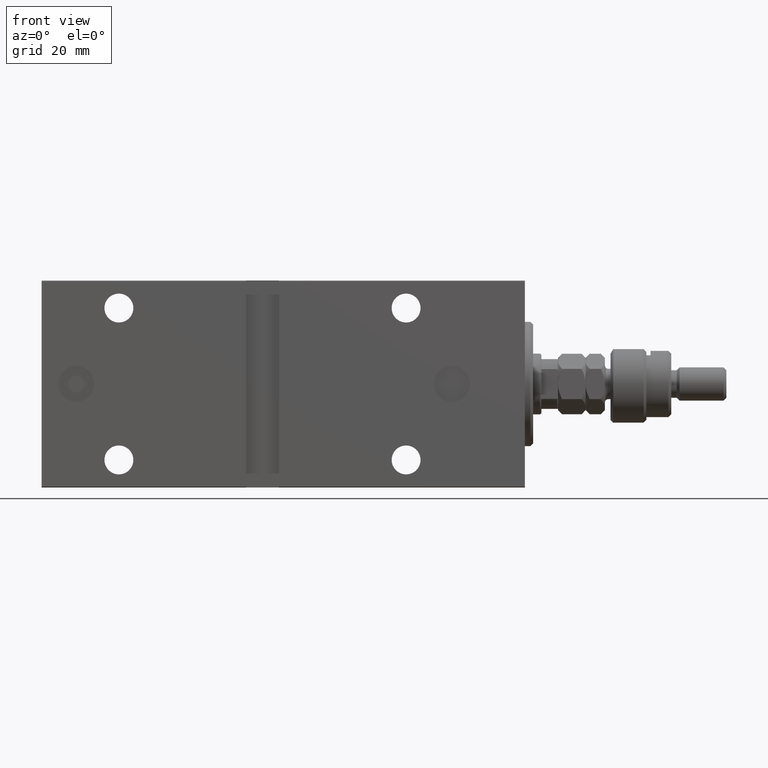
[diagram: clean part render]
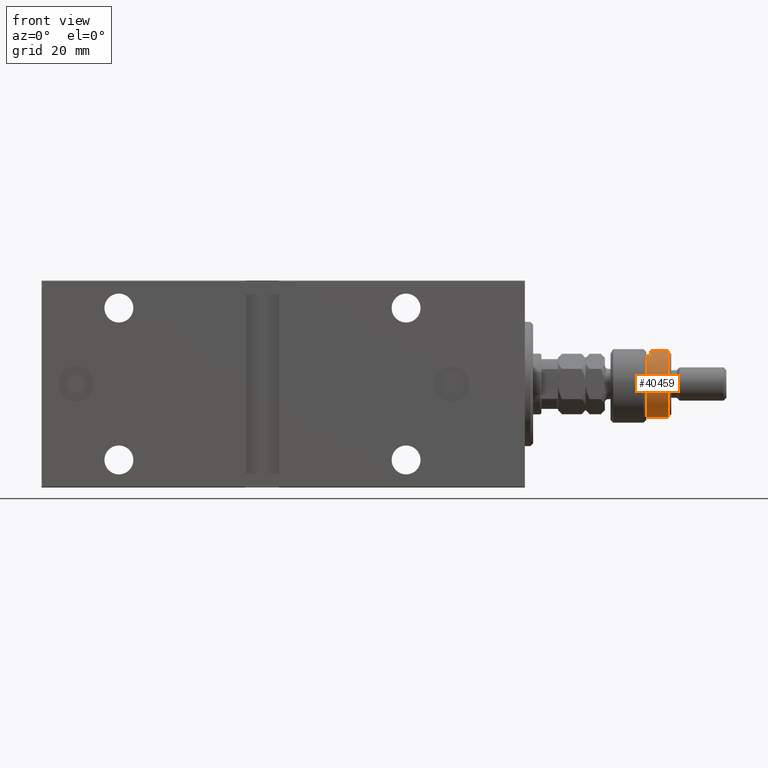
[diagram: same view with one face highlighted and labeled with its STEP entity id]
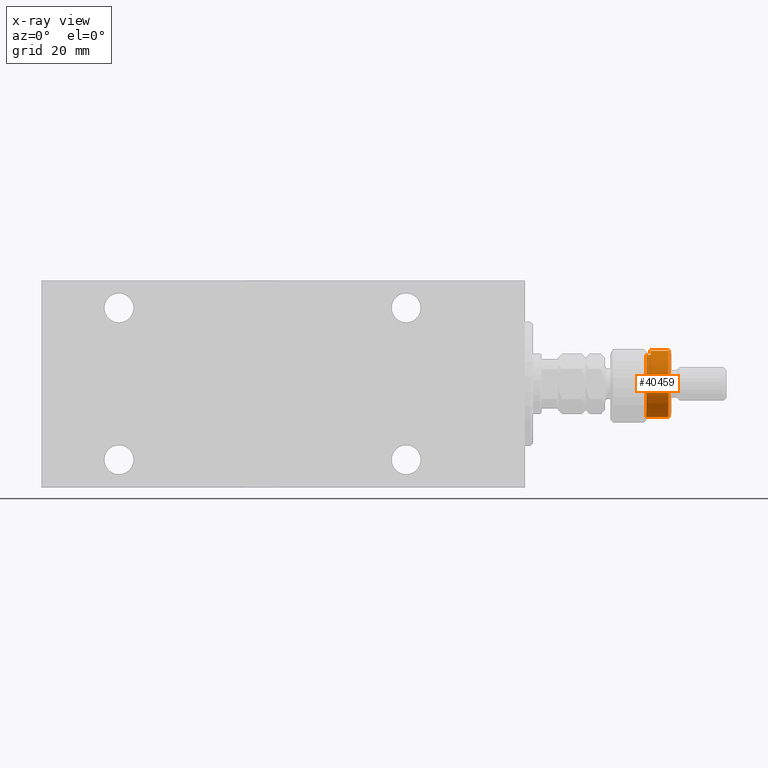
[diagram: x-ray of the same camera — body ghosted, the highlighted face saturated]
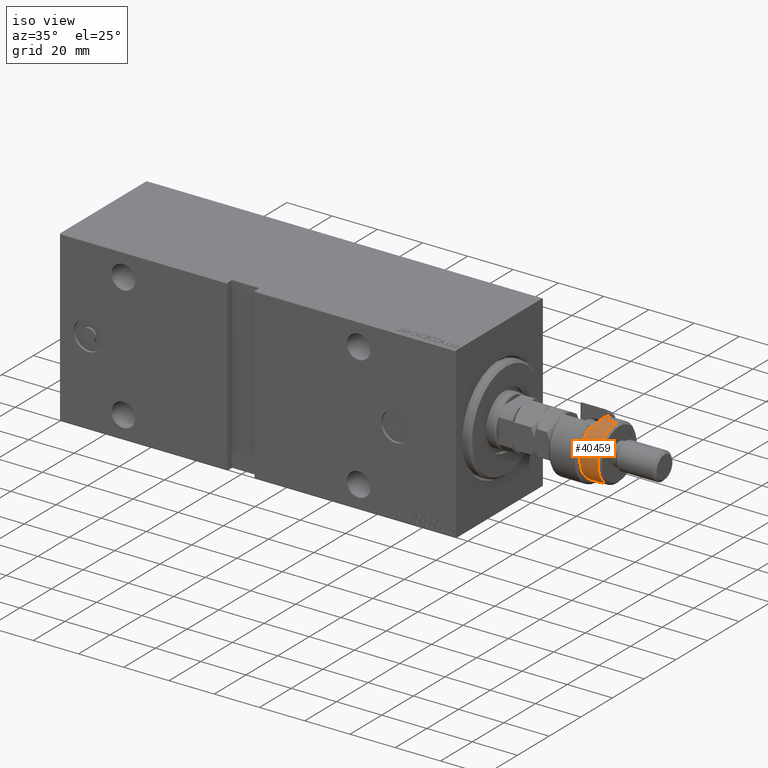
[diagram: same view with one face highlighted and labeled with its STEP entity id]
A machine part, front view. The second image highlights one B-rep face of the part: STEP entity #40459.
The next image is the same camera in x-ray: the body ghosted, the highlighted face saturated — about 0% of this face is hidden behind the body in this view.
A second angle (iso view) of the same face is appended — the face is thin or edge-on in the first view.
In plain terms, the highlighted cylindrical surface (edge-blend (fillet) strip) has radius 12 mm, axis along (-1, -0, 0).
Its self-contained STEP definition (entity closure, byte-faithful):
#1003 = DIRECTION ( 'NONE',  ( 0.000000000000000000, 0.000000000000000000, 1.000000000000000000 ) ) ;
#1295 = DIRECTION ( 'NONE',  ( -0.000000000000000000, -0.000000000000000000, -1.000000000000000000 ) ) ;
#1327 = CARTESIAN_POINT ( 'NONE',  ( -12.00000000000000178, 0.000000000000000000, 14.50000000000000000 ) ) ;
#1700 = CARTESIAN_POINT ( 'NONE',  ( -12.00000000000000178, 0.000000000000000000, 22.00000000000000000 ) ) ;
#2150 = VERTEX_POINT ( 'NONE', #38032 ) ;
#2375 = DIRECTION ( 'NONE',  ( -0.000000000000000000, -0.000000000000000000, -1.000000000000000000 ) ) ;
#2768 = ORIENTED_EDGE ( 'NONE', *, *, #15796, .T. ) ;
#3393 = AXIS2_PLACEMENT_3D ( 'NONE', #31748, #13721, #7242 ) ;
#4318 = FACE_OUTER_BOUND ( 'NONE', #42045, .T. ) ;
#4761 = LINE ( 'NONE', #22978, #43859 ) ;
#5775 = ORIENTED_EDGE ( 'NONE', *, *, #7630, .T. ) ;
#5812 = EDGE_CURVE ( 'NONE', #2150, #45543, #32012, .T. ) ;
#6661 = AXIS2_PLACEMENT_3D ( 'NONE', #32480, #15134, #29471 ) ;
#6680 = AXIS2_PLACEMENT_3D ( 'NONE', #32484, #18381, #21620 ) ;
#6964 = VERTEX_POINT ( 'NONE', #26775 ) ;
#7242 = DIRECTION ( 'NONE',  ( 1.000000000000000000, 0.000000000000000000, 0.000000000000000000 ) ) ;
#7630 = EDGE_CURVE ( 'NONE', #6964, #2150, #4761, .T. ) ;
#9374 = LINE ( 'NONE', #19545, #40935 ) ;
#9694 = VERTEX_POINT ( 'NONE', #21424 ) ;
#9702 = ORIENTED_EDGE ( 'NONE', *, *, #13060, .F. ) ;
#10612 = EDGE_CURVE ( 'NONE', #9694, #21721, #27700, .T. ) ;
#13060 = EDGE_CURVE ( 'NONE', #9694, #45543, #9374, .T. ) ;
#13709 = ORIENTED_EDGE ( 'NONE', *, *, #26905, .F. ) ;
#13721 = DIRECTION ( 'NONE',  ( 0.000000000000000000, 0.000000000000000000, -1.000000000000000000 ) ) ;
#15134 = DIRECTION ( 'NONE',  ( 0.000000000000000000, 0.000000000000000000, -1.000000000000000000 ) ) ;
#15462 = CARTESIAN_POINT ( 'NONE',  ( 12.00000000000000178, 1.469576158976824144E-15, 13.00000000000000000 ) ) ;
#15796 = EDGE_CURVE ( 'NONE', #21721, #18316, #34002, .T. ) ;
#17328 = ORIENTED_EDGE ( 'NONE', *, *, #10612, .T. ) ;
#18160 = CYLINDRICAL_SURFACE ( 'NONE', #6680, 12.00000000000000178 ) ;
#18304 = DIRECTION ( 'NONE',  ( 1.000000000000000000, 0.000000000000000000, 0.000000000000000000 ) ) ;
#18316 = VERTEX_POINT ( 'NONE', #1327 ) ;
#18381 = DIRECTION ( 'NONE',  ( -0.000000000000000000, -0.000000000000000000, -1.000000000000000000 ) ) ;
#18947 = ORIENTED_EDGE ( 'NONE', *, *, #5812, .T. ) ;
#19545 = CARTESIAN_POINT ( 'NONE',  ( 12.00000000000000178, 1.469576158976824144E-15, 22.00000000000000000 ) ) ;
#21424 = CARTESIAN_POINT ( 'NONE',  ( 12.00000000000000178, 1.469576158976824144E-15, 20.99999999999998224 ) ) ;
#21620 = DIRECTION ( 'NONE',  ( -1.000000000000000000, 0.000000000000000000, 0.000000000000000000 ) ) ;
#21721 = VERTEX_POINT ( 'NONE', #29377 ) ;
#22978 = CARTESIAN_POINT ( 'NONE',  ( -10.39230484541326760, -6.000000000000000000, 22.00000000000000000 ) ) ;
#23312 = VECTOR ( 'NONE', #2375, 1000.000000000000000 ) ;
#26775 = CARTESIAN_POINT ( 'NONE',  ( -10.39230484541326582, -5.999999999999998224, 14.50000000000000000 ) ) ;
#26905 = EDGE_CURVE ( 'NONE', #6964, #18316, #36165, .T. ) ;
#27700 = CIRCLE ( 'NONE', #3393, 12.00000000000000178 ) ;
#29377 = CARTESIAN_POINT ( 'NONE',  ( -12.00000000000000178, 0.000000000000000000, 20.99999999999998224 ) ) ;
#29471 = DIRECTION ( 'NONE',  ( -1.000000000000000000, 0.000000000000000000, 0.000000000000000000 ) ) ;
#31748 = CARTESIAN_POINT ( 'NONE',  ( 0.000000000000000000, 0.000000000000000000, 20.99999999999998224 ) ) ;
#32012 = CIRCLE ( 'NONE', #36445, 12.00000000000000178 ) ;
#32480 = CARTESIAN_POINT ( 'NONE',  ( 0.000000000000000000, 0.000000000000000000, 14.50000000000000000 ) ) ;
#32484 = CARTESIAN_POINT ( 'NONE',  ( 0.000000000000000000, 0.000000000000000000, 22.00000000000000000 ) ) ;
#34002 = LINE ( 'NONE', #1700, #23312 ) ;
#36165 = CIRCLE ( 'NONE', #6661, 12.00000000000000178 ) ;
#36445 = AXIS2_PLACEMENT_3D ( 'NONE', #38864, #1003, #18304 ) ;
#37554 = DIRECTION ( 'NONE',  ( -0.000000000000000000, -0.000000000000000000, -1.000000000000000000 ) ) ;
#38032 = CARTESIAN_POINT ( 'NONE',  ( -10.39230484541326760, -6.000000000000000000, 13.00000000000000000 ) ) ;
#38864 = CARTESIAN_POINT ( 'NONE',  ( 0.000000000000000000, 0.000000000000000000, 13.00000000000000000 ) ) ;
#40459 = ADVANCED_FACE ( 'NONE', ( #4318 ), #18160, .T. ) ;
#40935 = VECTOR ( 'NONE', #37554, 1000.000000000000000 ) ;
#42045 = EDGE_LOOP ( 'NONE', ( #9702, #17328, #2768, #13709, #5775, #18947 ) ) ;
#43859 = VECTOR ( 'NONE', #1295, 1000.000000000000000 ) ;
#45543 = VERTEX_POINT ( 'NONE', #15462 ) ;